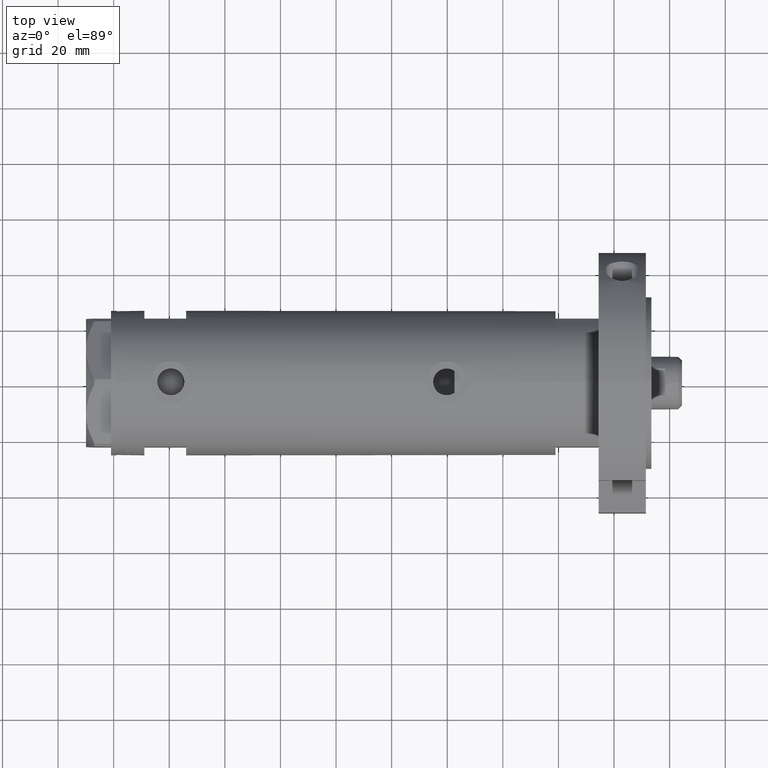
[diagram: clean part render]
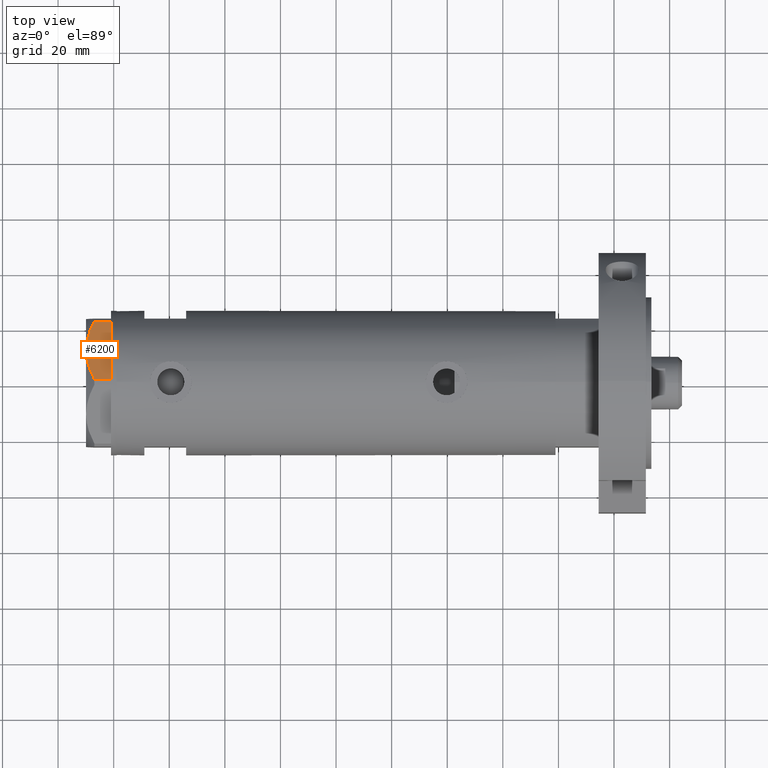
[diagram: same view with one face highlighted and labeled with its STEP entity id]
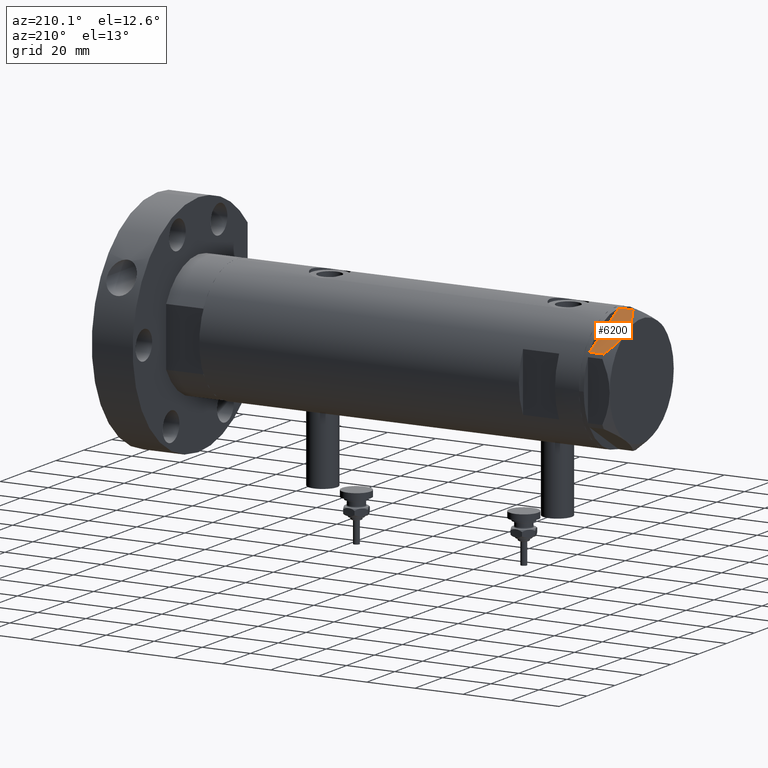
[diagram: same view with one face highlighted and labeled with its STEP entity id]
A machine part, top view. The second image highlights one B-rep face of the part: STEP entity #6200.
A second angle (auxiliary view) of the same face is appended — the face is thin or edge-on in the first view.
In plain terms, the highlighted planar face has unit normal (-0, -0.5, -0.866).
Its self-contained STEP definition (entity closure, byte-faithful):
#41 = VERTEX_POINT ( 'NONE', #7252 ) ;
#159 = CARTESIAN_POINT ( 'NONE',  ( 15.11535457301044261, -17.83125835109846591, 8.707651728477005193 ) ) ;
#393 = CARTESIAN_POINT ( 'NONE',  ( 0.9699484522387652463, -25.99811238272272718, 9.000000000000000000 ) ) ;
#723 = VECTOR ( 'NONE', #2001, 999.9999999999998863 ) ;
#781 = LINE ( 'NONE', #1889, #2960 ) ;
#811 = CARTESIAN_POINT ( 'NONE',  ( 1.854543075583504180E-13, -26.55811238272274366, 0.000000000000000000 ) ) ;
#991 = CARTESIAN_POINT ( 'NONE',  ( 19.07486218897004093, -15.54523556316577704, 7.397272853991418096 ) ) ;
#1102 = EDGE_LOOP ( 'NONE', ( #3755, #4665, #1787, #3603, #6988, #7484, #1675 ) ) ;
#1391 = EDGE_CURVE ( 'NONE', #2923, #3237, #3990, .T. ) ;
#1675 = ORIENTED_EDGE ( 'NONE', *, *, #1391, .F. ) ;
#1787 = ORIENTED_EDGE ( 'NONE', *, *, #2649, .T. ) ;
#1806 = CARTESIAN_POINT ( 'NONE',  ( 9.197898616903062319, -21.24770314027487572, 8.852712638955805957 ) ) ;
#1889 = CARTESIAN_POINT ( 'NONE',  ( 1.854543075583504180E-13, -26.55811238272274366, 0.000000000000000000 ) ) ;
#1943 = B_SPLINE_CURVE_WITH_KNOTS ( 'NONE', 3,
 ( #7955, #3116, #7432, #4277, #4795, #1806, #7316, #7272, #4244, #5409 ),
 .UNSPECIFIED., .F., .F.,
 ( 4, 2, 2, 2, 4 ),
 ( 0.001228959670438524313, 0.007497079744270824901, 0.01063113978118697747, 0.01219816979964504985, 0.01376519981810312224 ),
 .UNSPECIFIED. ) ;
#2001 = DIRECTION ( 'NONE',  ( 0.8660254037844345998, 0.5000000000000069944, 0.000000000000000000 ) ) ;
#2158 = VECTOR ( 'NONE', #4581, 1000.000000000000000 ) ;
#2229 = CARTESIAN_POINT ( 'NONE',  ( 17.77001848220201907, -16.29858742851870090, 7.892128867758446908 ) ) ;
#2513 = AXIS2_PLACEMENT_3D ( 'NONE', #3856, #4568, #4530 ) ;
#2632 = CARTESIAN_POINT ( 'NONE',  ( 22.03005154776152708, -13.83905619136116449, 0.000000000000000000 ) ) ;
#2649 = EDGE_CURVE ( 'NONE', #4224, #41, #781, .T. ) ;
#2719 = CARTESIAN_POINT ( 'NONE',  ( 22.00000000000017053, -13.85640646055075464, 0.000000000000000000 ) ) ;
#2923 = VERTEX_POINT ( 'NONE', #3590 ) ;
#2938 = CARTESIAN_POINT ( 'NONE',  ( 22.03005154776152352, -13.83905619136116449, 5.983800287807632401 ) ) ;
#2960 = VECTOR ( 'NONE', #5668, 999.9999999999998863 ) ;
#3017 = VERTEX_POINT ( 'NONE', #4152 ) ;
#3116 = CARTESIAN_POINT ( 'NONE',  ( 2.626494320835812690, -25.04170517956324460, 6.877782426143459915 ) ) ;
#3129 = CARTESIAN_POINT ( 'NONE',  ( 22.03005154776152352, -13.83905619136116449, 9.000000000000000000 ) ) ;
#3237 = VERTEX_POINT ( 'NONE', #7811 ) ;
#3438 = CARTESIAN_POINT ( 'NONE',  ( 0.9699484522387654684, -25.99811238272272718, 0.000000000000000000 ) ) ;
#3590 = CARTESIAN_POINT ( 'NONE',  ( 11.50000000000018296, -19.91858428704203732, 9.000000000000000000 ) ) ;
#3603 = ORIENTED_EDGE ( 'NONE', *, *, #4064, .T. ) ;
#3606 = DIRECTION ( 'NONE',  ( 0.000000000000000000, 0.000000000000000000, 1.000000000000000000 ) ) ;
#3755 = ORIENTED_EDGE ( 'NONE', *, *, #3872, .F. ) ;
#3856 = CARTESIAN_POINT ( 'NONE',  ( 1.854543075583504180E-13, -26.55811238272274366, 9.000000000000000000 ) ) ;
#3872 = EDGE_CURVE ( 'NONE', #3017, #2923, #1943, .T. ) ;
#3990 = B_SPLINE_CURVE_WITH_KNOTS ( 'NONE', 3,
 ( #5900, #6590, #159, #6090, #2229, #6488, #991, #5302, #5267, #2938 ),
 .UNSPECIFIED., .F., .F.,
 ( 4, 2, 2, 2, 4 ),
 ( 0.01376519981810312224, 0.01998941321701588197, 0.02154546656674407104, 0.02310151991647226011, 0.02621362661592864518 ),
 .UNSPECIFIED. ) ;
#4032 = VERTEX_POINT ( 'NONE', #2632 ) ;
#4064 = EDGE_CURVE ( 'NONE', #41, #4136, #6310, .T. ) ;
#4136 = VERTEX_POINT ( 'NONE', #2719 ) ;
#4152 = CARTESIAN_POINT ( 'NONE',  ( 0.9699484522386233598, -25.99811238272281244, 5.983800287807552465 ) ) ;
#4224 = VERTEX_POINT ( 'NONE', #3438 ) ;
#4244 = CARTESIAN_POINT ( 'NONE',  ( 11.04134848610953235, -20.18338686205092714, 9.000000000000095923 ) ) ;
#4277 = CARTESIAN_POINT ( 'NONE',  ( 6.946777556903783513, -22.54738849024392877, 8.426899937603783641 ) ) ;
#4530 = DIRECTION ( 'NONE',  ( -0.8660254037844344888, -0.5000000000000069944, 0.000000000000000000 ) ) ;
#4568 = DIRECTION ( 'NONE',  ( -0.5000000000000071054, 0.8660254037844345998, 0.000000000000000000 ) ) ;
#4581 = DIRECTION ( 'NONE',  ( 0.000000000000000000, 0.000000000000000000, -1.000000000000000000 ) ) ;
#4665 = ORIENTED_EDGE ( 'NONE', *, *, #6934, .T. ) ;
#4795 = CARTESIAN_POINT ( 'NONE',  ( 7.836767740116735048, -22.03355241838978884, 8.637313967156950767 ) ) ;
#4883 = EDGE_CURVE ( 'NONE', #4032, #3237, #6688, .T. ) ;
#4910 = CARTESIAN_POINT ( 'NONE',  ( 1.854543075583504180E-13, -26.55811238272274366, 0.000000000000000000 ) ) ;
#5267 = CARTESIAN_POINT ( 'NONE',  ( 21.20080365460326988, -14.31782268570101735, 6.431317509509397290 ) ) ;
#5302 = CARTESIAN_POINT ( 'NONE',  ( 20.35958612119336308, -14.80349985506228094, 6.844201024438393510 ) ) ;
#5409 = CARTESIAN_POINT ( 'NONE',  ( 11.50000000000018296, -19.91858428704203732, 9.000000000000000000 ) ) ;
#5425 = EDGE_CURVE ( 'NONE', #4136, #4032, #6256, .T. ) ;
#5668 = DIRECTION ( 'NONE',  ( 0.8660254037844345998, 0.5000000000000069944, 0.000000000000000000 ) ) ;
#5674 = FACE_OUTER_BOUND ( 'NONE', #1102, .T. ) ;
#5693 = DIRECTION ( 'NONE',  ( 0.8660254037844345998, 0.5000000000000069944, 0.000000000000000000 ) ) ;
#5900 = CARTESIAN_POINT ( 'NONE',  ( 11.50000000000018296, -19.91858428704203732, 9.000000000000000000 ) ) ;
#6037 = VECTOR ( 'NONE', #5693, 999.9999999999998863 ) ;
#6090 = CARTESIAN_POINT ( 'NONE',  ( 17.32831362639727146, -16.55360584591992890, 8.040681765829337024 ) ) ;
#6116 = VECTOR ( 'NONE', #3606, 1000.000000000000000 ) ;
#6200 = ADVANCED_FACE ( 'NONE', ( #5674 ), #7692, .F. ) ;
#6256 = LINE ( 'NONE', #4910, #723 ) ;
#6310 = LINE ( 'NONE', #811, #6037 ) ;
#6488 = CARTESIAN_POINT ( 'NONE',  ( 18.64279229058404752, -15.79469123530767227, 7.570552255229726413 ) ) ;
#6494 = LINE ( 'NONE', #393, #2158 ) ;
#6590 = CARTESIAN_POINT ( 'NONE',  ( 13.32175508098997518, -18.86679350063488059, 9.000000000000094147 ) ) ;
#6688 = LINE ( 'NONE', #3129, #6116 ) ;
#6934 = EDGE_CURVE ( 'NONE', #3017, #4224, #6494, .T. ) ;
#6988 = ORIENTED_EDGE ( 'NONE', *, *, #5425, .T. ) ;
#7252 = CARTESIAN_POINT ( 'NONE',  ( 1.000000000000106803, -25.98076211353316367, 0.000000000000000000 ) ) ;
#7272 = CARTESIAN_POINT ( 'NONE',  ( 10.58093321976977386, -20.44920774001120733, 8.981686407609503320 ) ) ;
#7316 = CARTESIAN_POINT ( 'NONE',  ( 9.656518383329995459, -20.98291889467261129, 8.907842277728439839 ) ) ;
#7432 = CARTESIAN_POINT ( 'NONE',  ( 4.320186229910052411, -24.06385169993491857, 7.629374868826107381 ) ) ;
#7484 = ORIENTED_EDGE ( 'NONE', *, *, #4883, .T. ) ;
#7692 = PLANE ( 'NONE',  #2513 ) ;
#7811 = CARTESIAN_POINT ( 'NONE',  ( 22.03005154776152352, -13.83905619136116449, 5.983800287807632401 ) ) ;
#7955 = CARTESIAN_POINT ( 'NONE',  ( 0.9699484522386233598, -25.99811238272281244, 5.983800287807552465 ) ) ;